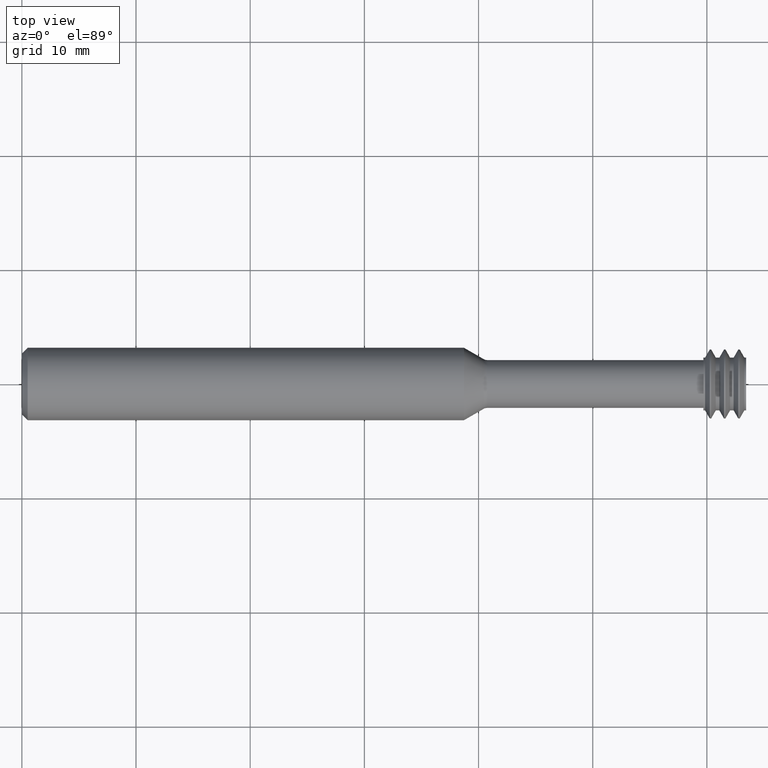
[diagram: clean part render]
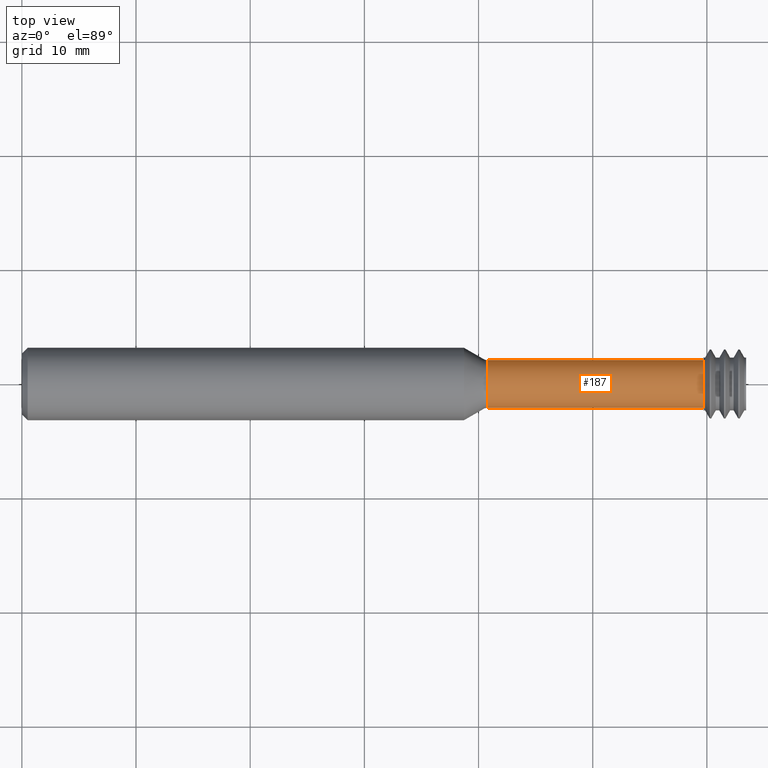
[diagram: same view with one face highlighted and labeled with its STEP entity id]
A machine part, top view. The second image highlights one B-rep face of the part: STEP entity #187.
In plain terms, the highlighted cylindrical surface (edge-blend (fillet) strip) has radius 2.0955 mm, axis along (-1, 0, -0).
Its self-contained STEP definition (entity closure, byte-faithful):
#6 = AXIS2_PLACEMENT_3D ( 'NONE', #350, #346, #345 ) ;
#12 = ORIENTED_EDGE ( 'NONE', *, *, #741, .F. ) ;
#13 = EDGE_LOOP ( 'NONE', ( #370, #857, #12, #278 ) ) ;
#14 = VECTOR ( 'NONE', #234, 39.37007874015748143 ) ;
#41 = EDGE_CURVE ( 'NONE', #825, #909, #493, .T. ) ;
#69 = CARTESIAN_POINT ( 'NONE',  ( 2.350000000000000089, 0.08250000000000004552, 1.010333609296566932E-17 ) ) ;
#167 = FACE_OUTER_BOUND ( 'NONE', #13, .T. ) ;
#187 = ADVANCED_FACE ( 'NONE', ( #167 ), #466, .T. ) ;
#217 = DIRECTION ( 'NONE',  ( -1.000000000000000000, 2.239313081137374464E-19, -0.0000000000000000000 ) ) ;
#229 = CARTESIAN_POINT ( 'NONE',  ( 2.350000000000000089, 0.08250000000000004552, 1.010333609296566932E-17 ) ) ;
#234 = DIRECTION ( 'NONE',  ( -1.000000000000000000, 2.239313081137374464E-19, -0.0000000000000000000 ) ) ;
#237 = LINE ( 'NONE', #229, #14 ) ;
#278 = ORIENTED_EDGE ( 'NONE', *, *, #41, .F. ) ;
#345 = DIRECTION ( 'NONE',  ( 0.0000000000000000000, 1.000000000000000000, 0.0000000000000000000 ) ) ;
#346 = DIRECTION ( 'NONE',  ( 1.000000000000000000, -2.239313081137374464E-19, 0.0000000000000000000 ) ) ;
#349 = VERTEX_POINT ( 'NONE', #528 ) ;
#350 = CARTESIAN_POINT ( 'NONE',  ( 2.350000000000000089, -7.258347044323575049E-19, 0.0000000000000000000 ) ) ;
#355 = CARTESIAN_POINT ( 'NONE',  ( 1.604698729810777991, -5.589384160600548992E-19, 0.0000000000000000000 ) ) ;
#370 = ORIENTED_EDGE ( 'NONE', *, *, #438, .F. ) ;
#438 = EDGE_CURVE ( 'NONE', #663, #825, #693, .T. ) ;
#453 = AXIS2_PLACEMENT_3D ( 'NONE', #355, #217, #680 ) ;
#466 = CYLINDRICAL_SURFACE ( 'NONE', #622, 0.08250000000000004552 ) ;
#491 = VECTOR ( 'NONE', #743, 39.37007874015748143 ) ;
#493 = LINE ( 'NONE', #959, #491 ) ;
#528 = CARTESIAN_POINT ( 'NONE',  ( 1.604698729810777991, 0.08250000000000007327, 1.030842554349373242E-17 ) ) ;
#551 = CARTESIAN_POINT ( 'NONE',  ( 1.604698729810777991, -0.08250000000000007327, 0.0000000000000000000 ) ) ;
#562 = EDGE_CURVE ( 'NONE', #663, #349, #237, .T. ) ;
#622 = AXIS2_PLACEMENT_3D ( 'NONE', #807, #669, #715 ) ;
#643 = CARTESIAN_POINT ( 'NONE',  ( 2.350000000000000089, -0.08250000000000004552, 0.0000000000000000000 ) ) ;
#663 = VERTEX_POINT ( 'NONE', #69 ) ;
#669 = DIRECTION ( 'NONE',  ( -1.000000000000000000, 2.239313081137374464E-19, -0.0000000000000000000 ) ) ;
#680 = DIRECTION ( 'NONE',  ( 0.0000000000000000000, -1.000000000000000000, 0.0000000000000000000 ) ) ;
#693 = CIRCLE ( 'NONE', #6, 0.08250000000000004552 ) ;
#710 = CIRCLE ( 'NONE', #453, 0.08250000000000007327 ) ;
#715 = DIRECTION ( 'NONE',  ( 0.0000000000000000000, -1.000000000000000000, 0.0000000000000000000 ) ) ;
#741 = EDGE_CURVE ( 'NONE', #909, #349, #710, .T. ) ;
#743 = DIRECTION ( 'NONE',  ( -1.000000000000000000, 2.239313081137374464E-19, -0.0000000000000000000 ) ) ;
#807 = CARTESIAN_POINT ( 'NONE',  ( 2.350000000000000089, -7.258347044323575049E-19, 0.0000000000000000000 ) ) ;
#825 = VERTEX_POINT ( 'NONE', #643 ) ;
#857 = ORIENTED_EDGE ( 'NONE', *, *, #562, .T. ) ;
#909 = VERTEX_POINT ( 'NONE', #551 ) ;
#959 = CARTESIAN_POINT ( 'NONE',  ( 2.350000000000000089, -0.08250000000000004552, 0.0000000000000000000 ) ) ;